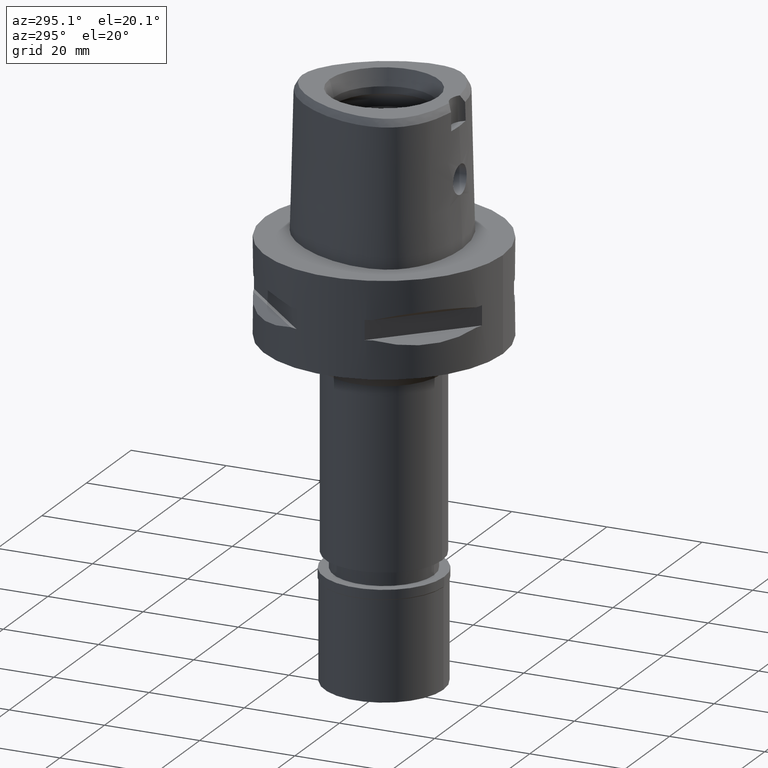
[diagram: clean part render]
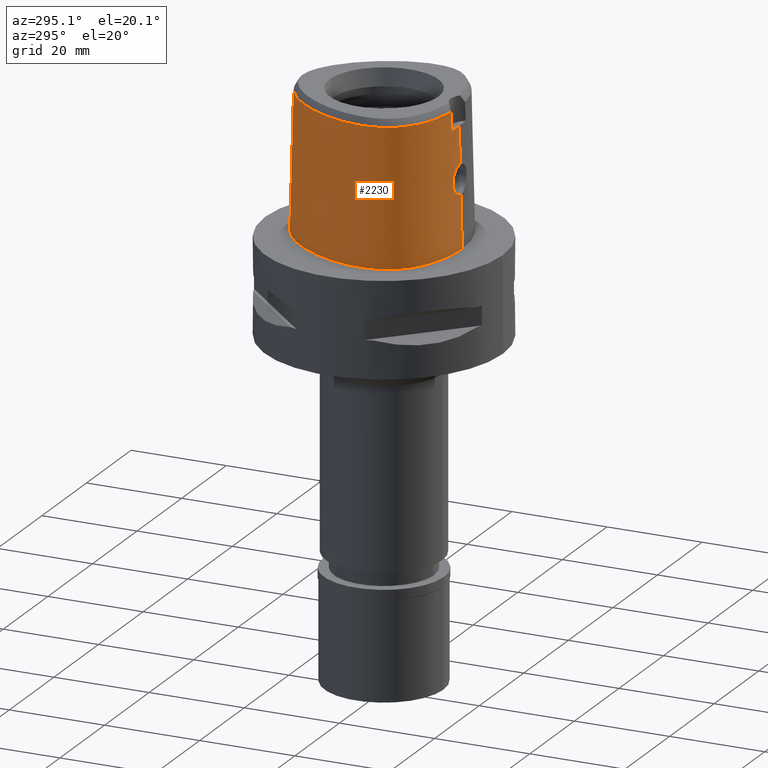
[diagram: same view with one face highlighted and labeled with its STEP entity id]
A machine part, auxiliary view. The second image highlights one B-rep face of the part: STEP entity #2230.
In plain terms, the highlighted face is a freeform B-spline surface patch.
Its self-contained STEP definition (entity closure, byte-faithful):
#16 = CARTESIAN_POINT ( 'NONE',  ( -2.147290074988021047, -15.96826519308855019, 16.16606823402931781 ) ) ;
#33 = CARTESIAN_POINT ( 'NONE',  ( -17.16495052104277974, -7.165908204084947997, -1.345441136431889395E-07 ) ) ;
#89 = CARTESIAN_POINT ( 'NONE',  ( 0.5756361495652000393, 18.69183960688999946, -0.5704149693897000439 ) ) ;
#103 = CARTESIAN_POINT ( 'NONE',  ( -2.839941135502000124E-12, -16.18126839358999902, 10.94999999999999929 ) ) ;
#110 = CARTESIAN_POINT ( 'NONE',  ( -4.735056267558000798, 17.74784408553999882, -0.5704149693897000439 ) ) ;
#133 = CARTESIAN_POINT ( 'NONE',  ( -11.44887800681000023, -13.28533830653000081, 19.20397063612000110 ) ) ;
#158 = CARTESIAN_POINT ( 'NONE',  ( -16.46533669864999894, -6.958244188577999978, 29.09116343887000156 ) ) ;
#163 = CARTESIAN_POINT ( 'NONE',  ( -2.030787586190755611, -15.97439197203214611, 16.27657083949467776 ) ) ;
#177 = CARTESIAN_POINT ( 'NONE',  ( -14.61870759508999917, -11.12154142011999980, 9.316777833364998429 ) ) ;
#181 = CARTESIAN_POINT ( 'NONE',  ( 6.782210745013088522E-08, -15.90128720080580216, 22.15000025258986582 ) ) ;
#198 = CARTESIAN_POINT ( 'NONE',  ( -10.90668476811999987, 11.98047050197999930, 29.09116343887000156 ) ) ;
#207 = CARTESIAN_POINT ( 'NONE',  ( -2.953287761239811182, -15.96791042230702473, 13.23104891048737386 ) ) ;
#208 = CARTESIAN_POINT ( 'NONE',  ( -1.154649350552922948, -16.01059875151096534, 16.82300001247303101 ) ) ;
#216 = CARTESIAN_POINT ( 'NONE',  ( -1.365876440252464796, -16.14000093520535017, 11.27254294479018881 ) ) ;
#227 = CARTESIAN_POINT ( 'NONE',  ( -16.45596362256999967, -8.350972089984999513, 9.316777833364998429 ) ) ;
#236 = CARTESIAN_POINT ( 'NONE',  ( -2.167461438340692936, -16.07478142648848873, 11.85411610869223153 ) ) ;
#253 = CARTESIAN_POINT ( 'NONE',  ( 1.060560745542000083, -15.70738053694999792, 29.09116343887000156 ) ) ;
#259 = CARTESIAN_POINT ( 'NONE',  ( -1.777739861705566415, -15.98655714082981483, 16.48034954023966492 ) ) ;
#309 = CARTESIAN_POINT ( 'NONE',  ( -15.84228689412705471, 3.460033471611907441, 28.52071192347010609 ) ) ;
#333 = CARTESIAN_POINT ( 'NONE',  ( -1.304824586065597591, -16.14367980511035938, 11.24258093298019290 ) ) ;
#342 = CARTESIAN_POINT ( 'NONE',  ( -2.804416461968546770, -15.93383585885220199, 15.19914549896493838 ) ) ;
#395 = CARTESIAN_POINT ( 'NONE',  ( -3.235121119988999983, -15.64755630481999837, 24.69999999999999929 ) ) ;
#413 = CARTESIAN_POINT ( 'NONE',  ( 0.3539521637489999595, 17.96246268766000043, 29.09116343887000156 ) ) ;
#422 = B_SPLINE_CURVE_WITH_KNOTS ( 'NONE', 3,
 ( #3407, #2302, #874, #3831, #4608, #3855, #4548, #1165, #4290, #4655, #1222, #33, #489, #1195, #2709, #2656, #2021, #3807, #464, #4182, #4208, #435 ),
 .UNSPECIFIED., .F., .F.,
 ( 4, 1, 1, 1, 1, 1, 1, 1, 1, 1, 1, 1, 1, 1, 1, 1, 1, 1, 1, 4 ),
 ( 0.0000000000000000000, 0.04166666666833999944, 0.08333333333493000983, 0.1666666666682000142, 0.2500000000013000157, 0.3333333333344999927, 0.4166666666677000253, 0.5000000000008999468, 0.5416666666675000741, 0.5833333333340999793, 0.6250000000006999956, 0.6458333333340000593, 0.6666666666673000119, 0.6875000000005999645, 0.7083333333339000282, 0.7500000000005000445, 0.7916666666671000607, 0.8333333333336999660, 0.9166666666668999985, 1.000000000000000000 ),
 .UNSPECIFIED. ) ;
#425 = DIRECTION ( 'NONE',  ( -1.823516099657955626E-12, -0.02499051295371941192, -0.9996876883618752707 ) ) ;
#435 = CARTESIAN_POINT ( 'NONE',  ( -2.281368045801000027E-11, -16.45500000000000185, 1.855922822831999799E-13 ) ) ;
#436 = ORIENTED_EDGE ( 'NONE', *, *, #506, .T. ) ;
#451 = VERTEX_POINT ( 'NONE', #1111 ) ;
#464 = CARTESIAN_POINT ( 'NONE',  ( -8.946741557338842910, -15.03902344067969921, -1.345441136431889395E-07 ) ) ;
#489 = CARTESIAN_POINT ( 'NONE',  ( -16.66912842446813769, -8.445800782619697245, -1.345441136431889395E-07 ) ) ;
#506 = EDGE_CURVE ( 'NONE', #3786, #1554, #680, .T. ) ;
#511 = CARTESIAN_POINT ( 'NONE',  ( -0.7803301224157143112, -16.17127761896326987, 11.02218832487876021 ) ) ;
#515 = CARTESIAN_POINT ( 'NONE',  ( -8.951632343266000547, -15.05250172412999987, -0.5704149693897000439 ) ) ;
#537 = CARTESIAN_POINT ( 'NONE',  ( -16.98194807787999849, -3.273961227261000140, 29.09116343887000156 ) ) ;
#543 = B_SPLINE_CURVE_WITH_KNOTS ( 'NONE', 3,
 ( #3535, #181, #1320, #3954 ),
 .UNSPECIFIED., .F., .F.,
 ( 4, 4 ),
 ( 0.0000000000000000000, 1.000000000000000000 ),
 .UNSPECIFIED. ) ;
#547 = CARTESIAN_POINT ( 'NONE',  ( -1.974011923641828758, -15.97722169910675127, 16.32556985268866967 ) ) ;
#564 = CARTESIAN_POINT ( 'NONE',  ( -17.26695526121000057, -0.2694874892783000186, 9.316777833364998429 ) ) ;
#572 = CARTESIAN_POINT ( 'NONE',  ( -1.824495776585176587, -16.10763072133382323, 11.54770719424314507 ) ) ;
#587 = CARTESIAN_POINT ( 'NONE',  ( -13.51574691691999774, -12.49390941817999945, -0.5704149693897000439 ) ) ;
#593 = CARTESIAN_POINT ( 'NONE',  ( -0.9200171648280663916, -16.01717542030822017, 16.90838961258443973 ) ) ;
#608 = CARTESIAN_POINT ( 'NONE',  ( -8.782085057800998129, -14.58525445429999934, 19.20397063612000110 ) ) ;
#611 = VECTOR ( 'NONE', #425, 1000.000000000000114 ) ;
#614 = LINE ( 'NONE', #1726, #3405 ) ;
#618 = CARTESIAN_POINT ( 'NONE',  ( -1.246904710687278595, -16.00770134240468678, 16.78481881917275587 ) ) ;
#624 = CARTESIAN_POINT ( 'NONE',  ( -1.185240961617836764, -16.15026635704342084, 11.18970954939988438 ) ) ;
#632 = CARTESIAN_POINT ( 'NONE',  ( -2.218346767529179697, -16.06939536445589312, 11.90655067609835704 ) ) ;
#638 = CARTESIAN_POINT ( 'NONE',  ( 0.7201291677544999770, -16.21519136713000009, 9.316777833364998429 ) ) ;
#647 = CARTESIAN_POINT ( 'NONE',  ( -1.142332392165549493, -16.01097948216497713, 16.82800652385463280 ) ) ;
#659 = CARTESIAN_POINT ( 'NONE',  ( -2.611019405680786942, -16.02245593392139966, 12.42336243517981131 ) ) ;
#666 = CARTESIAN_POINT ( 'NONE',  ( -7.523733151595394020, 15.26501052509573242, 28.52071192347010609 ) ) ;
#680 = B_SPLINE_CURVE_WITH_KNOTS ( 'NONE', 3,
 ( #2186, #1053, #3214, #2541 ),
 .UNSPECIFIED., .F., .F.,
 ( 4, 4 ),
 ( 0.0000000000000000000, 1.000000000000000000 ),
 .UNSPECIFIED. ) ;
#717 = CARTESIAN_POINT ( 'NONE',  ( 1.070056051206000003, -15.95437343328999802, 19.20397063612000110 ) ) ;
#720 = CARTESIAN_POINT ( 'NONE',  ( -2.823487070365362506, -15.99101270351569681, 12.84654193248368692 ) ) ;
#738 = CARTESIAN_POINT ( 'NONE',  ( 1.089046662534999932, -16.44835922595000000, -0.5704149693897000439 ) ) ;
#771 = CARTESIAN_POINT ( 'NONE',  ( -3.050024389103567213, -15.93682728871436893, 14.04426652284395693 ) ) ;
#792 = CARTESIAN_POINT ( 'NONE',  ( 0.3838142949113000357, 18.70350313193999980, -0.5704149693897000439 ) ) ;
#818 = CARTESIAN_POINT ( 'NONE',  ( 0.3738602511904999814, 18.45648965052000179, 9.316777833364998429 ) ) ;
#874 = CARTESIAN_POINT ( 'NONE',  ( -2.040572358359288518, 18.55015625331030193, -1.345441136431889395E-07 ) ) ;
#896 = ORIENTED_EDGE ( 'NONE', *, *, #2390, .T. ) ;
#901 = CARTESIAN_POINT ( 'NONE',  ( -4.922186715368000343, -15.43572473049999871, 29.09116343887000156 ) ) ;
#917 = EDGE_CURVE ( 'NONE', #451, #2364, #614, .T. ) ;
#921 = CARTESIAN_POINT ( 'NONE',  ( -16.06260382109000062, 3.539545244210000163, 19.20397063612000110 ) ) ;
#942 = CARTESIAN_POINT ( 'NONE',  ( -17.51166499216999739, -0.2260900516768000190, -0.5704149693897000439 ) ) ;
#965 = CARTESIAN_POINT ( 'NONE',  ( -15.57503057667000057, -8.992248095013000153, 29.09116343887000156 ) ) ;
#988 = CARTESIAN_POINT ( 'NONE',  ( -11.32630877641999945, -13.06981786779999943, 29.09116343887000156 ) ) ;
#994 = CARTESIAN_POINT ( 'NONE',  ( -1.612726137497974666, -15.99376531707286375, 16.58900383221054042 ) ) ;
#1011 = CARTESIAN_POINT ( 'NONE',  ( -1.893775706185675922, 17.84807082153568203, 28.52071192347010253 ) ) ;
#1034 = CARTESIAN_POINT ( 'NONE',  ( -2.651693848328785741, -16.01689519106129111, 12.49206992028461194 ) ) ;
#1051 = CARTESIAN_POINT ( 'NONE',  ( -1.080687980687604188, -16.01283629952124699, 16.85233897233315048 ) ) ;
#1053 = CARTESIAN_POINT ( 'NONE',  ( -1.084489118009109188, -15.83754148632461956, 24.70000016923100361 ) ) ;
#1057 = CARTESIAN_POINT ( 'NONE',  ( -1.175386497639693939, -16.15078445366180304, 11.18557374674743521 ) ) ;
#1071 = CARTESIAN_POINT ( 'NONE',  ( 1.079551356871000234, -16.20136632962000078, 9.316777833364998429 ) ) ;
#1083 = CARTESIAN_POINT ( 'NONE',  ( -2.816407481551031378, -15.93333177460182881, 15.17063687596105126 ) ) ;
#1111 = CARTESIAN_POINT ( 'NONE',  ( -2.940965197940999906E-11, 17.98202997909999823, 28.52071728569000086 ) ) ;
#1121 = CARTESIAN_POINT ( 'NONE',  ( -14.26907056455281086, -10.79012254419703964, 28.52071192347010609 ) ) ;
#1124 = CARTESIAN_POINT ( 'NONE',  ( -1.200046882047291152, -16.14948273154544722, 11.19596910874570383 ) ) ;
#1165 = CARTESIAN_POINT ( 'NONE',  ( -16.51672825098355801, 3.703437501148585387, -1.345441136431889395E-07 ) ) ;
#1173 = CARTESIAN_POINT ( 'NONE',  ( -2.789432624428045404, -15.93448362604005553, 15.23385107220370394 ) ) ;
#1195 = CARTESIAN_POINT ( 'NONE',  ( -16.20602472255270854, -9.356552736059130737, -1.345441136431889395E-07 ) ) ;
#1222 = CARTESIAN_POINT ( 'NONE',  ( -17.56373943267335491, -5.455996094228553694, -1.345441136431889395E-07 ) ) ;
#1244 = CARTESIAN_POINT ( 'NONE',  ( -0.4636176334529999998, 18.23430299984999792, 19.20397063612000110 ) ) ;
#1253 = CARTESIAN_POINT ( 'NONE',  ( -3.168920966622999824, -15.55911077538999976, 28.52071192346999950 ) ) ;
#1273 = CARTESIAN_POINT ( 'NONE',  ( -4.628819214691000106, 17.52182785284000133, 9.316777833364998429 ) ) ;
#1277 = B_SPLINE_CURVE_WITH_KNOTS ( 'NONE', 3,
 ( #4874, #1495, #2984, #2205, #4497, #3704, #1121, #4855, #4426, #2607, #1521, #4028, #4060, #4131, #309, #3752, #1445, #666, #4405, #1011, #2505, #1838 ),
 .UNSPECIFIED., .F., .F.,
 ( 4, 1, 1, 1, 1, 1, 1, 1, 1, 1, 1, 1, 1, 1, 1, 1, 1, 1, 1, 4 ),
 ( 0.0000000000000000000, 0.03108635432773906859, 0.1191694130250540162, 0.1632109423737113651, 0.2072524717223688528, 0.2512940010710263405, 0.2733147657453551260, 0.2953355304196838005, 0.3173562950940124749, 0.3393770597683412604, 0.3834185891169987204, 0.4274601184656560693, 0.4715016478143136958, 0.5595847065116285046, 0.6476677652089434245, 0.7357508239062583444, 0.8238338826034675710, 0.9119169413008565428, 0.9559584706495034556, 1.000000000000000000 ),
 .UNSPECIFIED. ) ;
#1299 = CARTESIAN_POINT ( 'NONE',  ( -17.02224553026000109, -0.3128849268798000183, 19.20397063612000110 ) ) ;
#1318 = CARTESIAN_POINT ( 'NONE',  ( -17.17866843582999792, -7.169980046546999830, -0.5704149693897000439 ) ) ;
#1320 = CARTESIAN_POINT ( 'NONE',  ( 6.797732430453555336E-08, -15.96503292052497969, 19.60000012629500077 ) ) ;
#1339 = CARTESIAN_POINT ( 'NONE',  ( -16.94089119010000033, -7.099401427224000471, 9.316777833364998429 ) ) ;
#1361 = CARTESIAN_POINT ( 'NONE',  ( -13.05575584666000211, -11.90823686029999884, 29.09116343887000156 ) ) ;
#1371 = CARTESIAN_POINT ( 'NONE',  ( -2.192347023517017934, -16.07215629485219921, 11.87955887064578242 ) ) ;
#1387 = CARTESIAN_POINT ( 'NONE',  ( -7.822764684203001195, 15.64590997224000013, 9.316777833364998429 ) ) ;
#1396 = CARTESIAN_POINT ( 'NONE',  ( -1.161963448143040978, -16.01037049747069929, 16.81999471490744469 ) ) ;
#1410 = CARTESIAN_POINT ( 'NONE',  ( -2.589913444526260378, -16.02530027108240418, 12.38873572170439097 ) ) ;
#1415 = ORIENTED_EDGE ( 'NONE', *, *, #3423, .F. ) ;
#1426 = EDGE_CURVE ( 'NONE', #1676, #2899, #3789, .T. ) ;
#1439 = CARTESIAN_POINT ( 'NONE',  ( -2.326795673539355125, -16.05749942887523218, 12.02743345691540000 ) ) ;
#1445 = CARTESIAN_POINT ( 'NONE',  ( -10.91764528034740778, 11.98972044748099464, 28.52071192347010609 ) ) ;
#1453 = CARTESIAN_POINT ( 'NONE',  ( -2.909137552899626389, -15.97627371699405074, 13.08234413149751241 ) ) ;
#1471 = CARTESIAN_POINT ( 'NONE',  ( -1.298308546164000044, -16.00668726618000193, 19.20397063612000110 ) ) ;
#1478 = CARTESIAN_POINT ( 'NONE',  ( -2.828519626698094314, -15.99018834924777188, 12.85893844538408004 ) ) ;
#1495 = CARTESIAN_POINT ( 'NONE',  ( -3.738627773282984013, -15.49270868800090817, 28.52071192347010253 ) ) ;
#1521 = CARTESIAN_POINT ( 'NONE',  ( -16.47905549556842075, -6.962316292880086799, 28.52071192347010609 ) ) ;
#1534 = CARTESIAN_POINT ( 'NONE',  ( -2.897875851387719415, -15.92997726602835051, 14.97345579578013997 ) ) ;
#1554 = VERTEX_POINT ( 'NONE', #2074 ) ;
#1557 = CARTESIAN_POINT ( 'NONE',  ( -3.049900212868041471, -15.94261167837582960, 13.81468546120752627 ) ) ;
#1581 = CARTESIAN_POINT ( 'NONE',  ( -0.4507704718237000030, 17.98660829246000148, 29.09116343887000156 ) ) ;
#1617 = LINE ( 'NONE', #4513, #611 ) ;
#1629 = CARTESIAN_POINT ( 'NONE',  ( 0.5455909865319999996, 18.19844099959999895, 19.20397063612000110 ) ) ;
#1653 = CARTESIAN_POINT ( 'NONE',  ( -4.522582161823000213, 17.29581162014000029, 19.20397063612000110 ) ) ;
#1676 = VERTEX_POINT ( 'NONE', #3844 ) ;
#1679 = CARTESIAN_POINT ( 'NONE',  ( -4.965998058601000409, -15.68039671751999720, 19.20397063612000110 ) ) ;
#1700 = CARTESIAN_POINT ( 'NONE',  ( -16.22974791770000280, -8.250337560479998444, 19.20397063612000110 ) ) ;
#1719 = CARTESIAN_POINT ( 'NONE',  ( -16.00394162810000154, -9.239880006736001405, 9.316777833364998429 ) ) ;
#1726 = CARTESIAN_POINT ( 'NONE',  ( -2.940965197940999906E-11, 17.98202997909999823, 28.52071728569000086 ) ) ;
#1728 = CARTESIAN_POINT ( 'NONE',  ( -0.9942354941246660527, -16.01528989706931583, 16.88423654522987860 ) ) ;
#1744 = CARTESIAN_POINT ( 'NONE',  ( -16.21839715381000246, -9.363695962597001099, -0.5704149693897000439 ) ) ;
#1752 = CARTESIAN_POINT ( 'NONE',  ( -1.509334869930127665, -15.99801316580342814, 16.65089544972779478 ) ) ;
#1767 = CARTESIAN_POINT ( 'NONE',  ( -11.09665480883999855, 12.14079261895999906, 19.20397063612000110 ) ) ;
#1787 = CARTESIAN_POINT ( 'NONE',  ( -2.746377481657158892, -16.00326057041207761, 12.66963668950923250 ) ) ;
#1799 = CARTESIAN_POINT ( 'NONE',  ( -1.858121229638786343, -15.98284882596963996, 16.42071856142419861 ) ) ;
#1810 = CARTESIAN_POINT ( 'NONE',  ( -2.676760126935361583, -16.01335860443708015, 12.53714519679417272 ) ) ;
#1827 = CARTESIAN_POINT ( 'NONE',  ( -2.094858927816013239, -15.97106233740291259, 16.21701581232884237 ) ) ;
#1838 = CARTESIAN_POINT ( 'NONE',  ( -2.940965197940999906E-11, 17.98202997909999823, 28.52071728569000086 ) ) ;
#1864 = CARTESIAN_POINT ( 'NONE',  ( -1.234760267101486120, -16.14760890805744253, 11.21096960602424097 ) ) ;
#1874 = VERTEX_POINT ( 'NONE', #3865 ) ;
#1989 = VERTEX_POINT ( 'NONE', #3910 ) ;
#1996 = FACE_OUTER_BOUND ( 'NONE', #4256, .T. ) ;
#2021 = CARTESIAN_POINT ( 'NONE',  ( -13.50690093688630355, -12.48264648703121260, -1.345441136431889395E-07 ) ) ;
#2039 = CARTESIAN_POINT ( 'NONE',  ( -5.009809401833999587, -15.92506870453999923, 9.316777833364998429 ) ) ;
#2060 = CARTESIAN_POINT ( 'NONE',  ( -17.33218217752000001, -5.422849666056000828, 9.316777833364998429 ) ) ;
#2074 = CARTESIAN_POINT ( 'NONE',  ( -3.235121119988999983, -15.64755630481999837, 24.69999999999999929 ) ) ;
#2081 = CARTESIAN_POINT ( 'NONE',  ( -17.22987907422999854, -3.272349404924000282, 19.20397063612000110 ) ) ;
#2086 = CARTESIAN_POINT ( 'NONE',  ( -1.572520811367034366, -16.12649376600628059, 11.38472095010808793 ) ) ;
#2087 = CARTESIAN_POINT ( 'NONE',  ( -0.6729281202612350521, -16.02259025627638778, 16.97651237904580057 ) ) ;
#2101 = CARTESIAN_POINT ( 'NONE',  ( -7.514850440890000094, 15.25369593373000043, 29.09116343887000156 ) ) ;
#2109 = CARTESIAN_POINT ( 'NONE',  ( 0.0000000000000000000, -16.02877864023999877, 17.05000000000000071 ) ) ;
#2124 = CARTESIAN_POINT ( 'NONE',  ( -8.697311415068000429, -14.35163081938999952, 29.09116343887000156 ) ) ;
#2144 = CARTESIAN_POINT ( 'NONE',  ( -2.543826128444886869, -16.03134158490992434, 12.31726274100129892 ) ) ;
#2186 = CARTESIAN_POINT ( 'NONE',  ( 2.030224829794000080E-07, -15.83752876601000281, 24.70000006102999990 ) ) ;
#2205 = CARTESIAN_POINT ( 'NONE',  ( -8.702202515497392099, -14.36510996956199548, 28.52071192347010609 ) ) ;
#2208 = EDGE_CURVE ( 'NONE', #2364, #1874, #422, .T. ) ;
#2211 = CARTESIAN_POINT ( 'NONE',  ( -2.852964108057064685, -15.98613240798083623, 12.92095709857099983 ) ) ;
#2229 = CARTESIAN_POINT ( 'NONE',  ( 8.526067355987000396E-11, 18.69499999997999851, 1.843710369560999637E-13 ) ) ;
#2230 = ADVANCED_FACE ( 'NONE', ( #1996 ), #4785, .T. ) ;
#2261 = CARTESIAN_POINT ( 'NONE',  ( -2.810669180506640608, -15.93357175435965090, 15.18434255725068560 ) ) ;
#2277 = CARTESIAN_POINT ( 'NONE',  ( 2.030224829794000080E-07, -15.83752876601000281, 24.70000006102999990 ) ) ;
#2278 = CARTESIAN_POINT ( 'NONE',  ( -4.416345108954999432, 17.06979538743999925, 29.09116343887000156 ) ) ;
#2285 = CARTESIAN_POINT ( 'NONE',  ( -2.319868985695882735, -15.95889227881325567, 15.99336665119922785 ) ) ;
#2302 = CARTESIAN_POINT ( 'NONE',  ( -0.6801907860994104160, 18.69500000336812207, -1.345441136431889395E-07 ) ) ;
#2323 = CARTESIAN_POINT ( 'NONE',  ( 0.3639062074696999827, 18.20947616909000288, 19.20397063612000110 ) ) ;
#2364 = VERTEX_POINT ( 'NONE', #2229 ) ;
#2373 = CARTESIAN_POINT ( 'NONE',  ( -1.941729152328000030, 18.07741812242000279, 19.20397063612000110 ) ) ;
#2390 = EDGE_CURVE ( 'NONE', #1989, #451, #1277, .T. ) ;
#2393 = CARTESIAN_POINT ( 'NONE',  ( -7.976721805859000369, 15.84201699148999865, -0.5704149693897000439 ) ) ;
#2414 = CARTESIAN_POINT ( 'NONE',  ( -17.08644795110999937, -5.387673865237999848, 19.20397063612000110 ) ) ;
#2438 = CARTESIAN_POINT ( 'NONE',  ( -15.66039569912999774, -10.22138777830999956, -0.5704149693897000439 ) ) ;
#2459 = CARTESIAN_POINT ( 'NONE',  ( -15.46013578524999943, -10.07579649596000060, 9.316777833364998429 ) ) ;
#2478 = CARTESIAN_POINT ( 'NONE',  ( -8.866858700533001070, -14.81887808922000005, 9.316777833364998429 ) ) ;
#2486 = CARTESIAN_POINT ( 'NONE',  ( -1.647720974870742427, -15.99226611569845247, 16.56665347346226369 ) ) ;
#2499 = CARTESIAN_POINT ( 'NONE',  ( -2.277845221344408699, -16.06297226044945958, 11.97064251377652866 ) ) ;
#2505 = CARTESIAN_POINT ( 'NONE',  ( -0.6295828121028675950, 17.98203011041537280, 28.52071192347010609 ) ) ;
#2540 = CARTESIAN_POINT ( 'NONE',  ( -2.785351805582555684, -15.99721084885888089, 12.75429401941662100 ) ) ;
#2541 = CARTESIAN_POINT ( 'NONE',  ( -3.235121119988999983, -15.64755630481999837, 24.69999999999999929 ) ) ;
#2557 = CARTESIAN_POINT ( 'NONE',  ( 0.7138086147879999510, -15.96808606751999982, 19.20397063612000110 ) ) ;
#2572 = ORIENTED_EDGE ( 'NONE', *, *, #3303, .F. ) ;
#2573 = CARTESIAN_POINT ( 'NONE',  ( -3.044373801969535442, -15.93377869067411723, 14.19140803545593776 ) ) ;
#2596 = CARTESIAN_POINT ( 'NONE',  ( -2.139722381399849827, -15.96867257770622572, 16.17353267031746711 ) ) ;
#2607 = CARTESIAN_POINT ( 'NONE',  ( -16.01658395504083643, -8.155509241189935921, 28.52071192347010609 ) ) ;
#2638 = CARTESIAN_POINT ( 'NONE',  ( -2.663989615078775408, -15.94049756288809938, 15.48802251322129919 ) ) ;
#2656 = CARTESIAN_POINT ( 'NONE',  ( -14.78833380645286510, -11.28232910388040722, -1.345441136431889395E-07 ) ) ;
#2709 = CARTESIAN_POINT ( 'NONE',  ( -15.64884224528512213, -10.21298828323255492, -1.345441136431889395E-07 ) ) ;
#2716 = CARTESIAN_POINT ( 'NONE',  ( -2.839941135502000124E-12, -16.18126839358999902, 10.94999999999999929 ) ) ;
#2731 = CARTESIAN_POINT ( 'NONE',  ( -2.043508294458999952, 18.56419797655999915, -0.5704149693897000439 ) ) ;
#2776 = EDGE_CURVE ( 'NONE', #2899, #1874, #1617, .T. ) ;
#2785 = CARTESIAN_POINT ( 'NONE',  ( -16.77753579929999717, -0.3562823644812999624, 29.09116343887000156 ) ) ;
#2803 = CARTESIAN_POINT ( 'NONE',  ( -15.78948610237999794, -9.116064050874999936, 19.20397063612000110 ) ) ;
#2823 = CARTESIAN_POINT ( 'NONE',  ( -13.20908620340999917, -12.10346104625999786, 19.20397063612000110 ) ) ;
#2831 = CARTESIAN_POINT ( 'NONE',  ( -1.489022098418614659, -16.13222843889009894, 11.33656707562905375 ) ) ;
#2850 = CARTESIAN_POINT ( 'NONE',  ( -16.84071372470000227, -5.352498064421000734, 29.09116343887000156 ) ) ;
#2874 = CARTESIAN_POINT ( 'NONE',  ( -11.28662484956000078, 12.30111473592999971, 9.316777833364998429 ) ) ;
#2884 = CARTESIAN_POINT ( 'NONE',  ( -1.464230115295341861, -15.99978155752991604, 16.67600899017843474 ) ) ;
#2899 = VERTEX_POINT ( 'NONE', #2716 ) ;
#2915 = CARTESIAN_POINT ( 'NONE',  ( -0.7716804096326577156, -16.02065638628776512, 16.95256773572744535 ) ) ;
#2935 = ORIENTED_EDGE ( 'NONE', *, *, #1426, .F. ) ;
#2945 = CARTESIAN_POINT ( 'NONE',  ( -2.884965141857559257, -15.98065922520799909, 13.00785839096715435 ) ) ;
#2953 = CARTESIAN_POINT ( 'NONE',  ( -3.040936525959272885, -15.93294854341571387, 14.23999838212788838 ) ) ;
#2964 = CARTESIAN_POINT ( 'NONE',  ( -1.309813746772999998, -16.25411905957000158, 9.316777833364998429 ) ) ;
#2984 = CARTESIAN_POINT ( 'NONE',  ( -5.902447850707896571, -15.16907854012099754, 28.52071192347010609 ) ) ;
#3023 = CARTESIAN_POINT ( 'NONE',  ( -3.027041479268463675, -15.93083733890005327, 14.38613028389028514 ) ) ;
#3043 = CARTESIAN_POINT ( 'NONE',  ( -3.033174470079177176, -15.94941370605617159, 13.62317640955338760 ) ) ;
#3063 = CARTESIAN_POINT ( 'NONE',  ( -1.992618723393999813, 18.32080804949000097, 9.316777833364998429 ) ) ;
#3089 = B_SPLINE_CURVE_WITH_KNOTS ( 'NONE', 3,
 ( #1253, #4268, #3722, #395 ),
 .UNSPECIFIED., .F., .F.,
 ( 4, 4 ),
 ( 0.0000000000000000000, 1.000000000000000000 ),
 .UNSPECIFIED. ) ;
#3161 = CARTESIAN_POINT ( 'NONE',  ( -15.82879718555000181, 3.455165072912000479, 29.09116343887000156 ) ) ;
#3166 = ORIENTED_EDGE ( 'NONE', *, *, #2208, .T. ) ;
#3181 = CARTESIAN_POINT ( 'NONE',  ( -11.47659489027000035, 12.46143685290000036, -0.5704149693897000439 ) ) ;
#3186 = CARTESIAN_POINT ( 'NONE',  ( -1.578081282703814647, -15.99520688258742851, 16.61014732801110938 ) ) ;
#3201 = CARTESIAN_POINT ( 'NONE',  ( -14.43869610808999937, -10.95090959492000060, 19.20397063612000110 ) ) ;
#3211 = CARTESIAN_POINT ( 'NONE',  ( -2.977125115133987698, -15.96287852150346609, 13.32982323607667929 ) ) ;
#3212 = CARTESIAN_POINT ( 'NONE',  ( -0.1860095695891538503, -16.02877864023999521, 17.05000000000000071 ) ) ;
#3214 = CARTESIAN_POINT ( 'NONE',  ( -2.169052023958359054, -15.77399788493572252, 24.70000016923100361 ) ) ;
#3228 = CARTESIAN_POINT ( 'NONE',  ( -7.668807562546000156, 15.44980295299000161, 19.20397063612000110 ) ) ;
#3253 = CARTESIAN_POINT ( 'NONE',  ( -14.25868462108000045, -10.78027776973000051, 29.09116343887000156 ) ) ;
#3268 = CARTESIAN_POINT ( 'NONE',  ( -2.552453281223320936, -16.03022206925511739, 12.33036638904224702 ) ) ;
#3303 = EDGE_CURVE ( 'NONE', #1989, #1554, #3089, .T. ) ;
#3316 = CARTESIAN_POINT ( 'NONE',  ( -2.453157249243884230, -15.95160785209461629, 15.82331514068931178 ) ) ;
#3335 = CARTESIAN_POINT ( 'NONE',  ( -2.835998777458668574, -15.98895818849806183, 12.87753709205216346 ) ) ;
#3341 = CARTESIAN_POINT ( 'NONE',  ( -2.727932080404930737, -15.93733995233629486, 15.36492654819695858 ) ) ;
#3378 = CARTESIAN_POINT ( 'NONE',  ( 0.7074880618215999561, -15.72098076789999865, 29.09116343887000156 ) ) ;
#3388 = CARTESIAN_POINT ( 'NONE',  ( -2.121841374835716110, -15.96962928976705953, 16.19099185722724954 ) ) ;
#3405 = VECTOR ( 'NONE', #4708, 1000.000000000000114 ) ;
#3407 = CARTESIAN_POINT ( 'NONE',  ( 8.526067355987000396E-11, 18.69499999997999851, 1.843710369560999637E-13 ) ) ;
#3423 = EDGE_CURVE ( 'NONE', #3786, #1676, #543, .T. ) ;
#3431 = CARTESIAN_POINT ( 'NONE',  ( -0.4893119567116999691, 18.72969241463999879, -0.5704149693897000439 ) ) ;
#3483 = CARTESIAN_POINT ( 'NONE',  ( 0.5606135680485999639, 18.44514030323999876, 9.316777833364998429 ) ) ;
#3484 = ORIENTED_EDGE ( 'NONE', *, *, #2776, .F. ) ;
#3531 = CARTESIAN_POINT ( 'NONE',  ( -14.79871908209999987, -11.29217324531999900, -0.5704149693897000439 ) ) ;
#3535 = CARTESIAN_POINT ( 'NONE',  ( 2.030224829794000080E-07, -15.83752876601000281, 24.70000006102999990 ) ) ;
#3552 = CARTESIAN_POINT ( 'NONE',  ( -16.00353221283000238, -8.149703030974000839, 29.09116343887000156 ) ) ;
#3560 = CARTESIAN_POINT ( 'NONE',  ( -1.671121799475668412, -15.99125384014665485, 16.55147925627117189 ) ) ;
#3578 = CARTESIAN_POINT ( 'NONE',  ( -16.70311394438000008, -7.028822807901000225, 19.20397063612000110 ) ) ;
#3598 = CARTESIAN_POINT ( 'NONE',  ( -17.47781007058999947, -3.270737582586999981, 9.316777833364998429 ) ) ;
#3622 = CARTESIAN_POINT ( 'NONE',  ( -15.25987587136999935, -9.930205213620999061, 19.20397063612000110 ) ) ;
#3632 = CARTESIAN_POINT ( 'NONE',  ( -2.174903967716026010, -16.07399873101336496, 11.86167149722171921 ) ) ;
#3669 = CARTESIAN_POINT ( 'NONE',  ( -2.567601606276564752, -16.02824055683983673, 12.35375696231888654 ) ) ;
#3687 = CARTESIAN_POINT ( 'NONE',  ( -1.171575576434904065, -16.15098385800271075, 11.18398276020157311 ) ) ;
#3704 = CARTESIAN_POINT ( 'NONE',  ( -13.06460239553488734, -11.91950051571214253, 28.52071192347010609 ) ) ;
#3722 = CARTESIAN_POINT ( 'NONE',  ( -3.213444811939455636, -15.61774738279276953, 25.97357064115666603 ) ) ;
#3736 = CARTESIAN_POINT ( 'NONE',  ( -2.820449305715940991, -15.99150796465939273, 12.83914045378499225 ) ) ;
#3741 = CARTESIAN_POINT ( 'NONE',  ( -2.615901618694457920, -15.94298692150383445, 15.57147967510174880 ) ) ;
#3752 = CARTESIAN_POINT ( 'NONE',  ( -13.75951393052669758, 7.944084103042049705, 28.52071192347010609 ) ) ;
#3786 = VERTEX_POINT ( 'NONE', #2277 ) ;
#3789 = B_SPLINE_CURVE_WITH_KNOTS ( 'NONE', 3,
 ( #2109, #3212, #3981, #2087, #2915, #593, #1728, #1051, #4780, #647, #208, #1396, #618, #4756, #2884, #1752, #3186, #994, #2486, #3560, #4007, #259, #1799, #547, #163, #1827, #3388, #2596, #16, #2285, #3316, #3741, #2638, #3341, #4888, #1173, #342, #2261, #4913, #1083, #1534, #4840, #4557, #3023, #2953, #2573, #4095, #771, #1557, #3043, #3211, #207, #1453, #2945, #2211, #3335, #1478, #720, #3736, #2540, #1787, #1810, #1034, #659, #1410, #3669, #3268, #2144, #4817, #4791, #1439, #2499, #632, #1371, #3632, #236, #4730, #572, #2086, #2831, #216, #333, #1864, #1124, #624, #1057, #3687, #511, #4359, #103 ),
 .UNSPECIFIED., .F., .F.,
 ( 4, 2, 2, 1, 1, 1, 2, 2, 2, 2, 1, 2, 2, 2, 1, 1, 2, 2, 2, 2, 1, 1, 1, 2, 2, 2, 2, 2, 2, 2, 2, 1, 1, 1, 2, 2, 2, 2, 1, 2, 2, 2, 1, 1, 2, 2, 2, 2, 1, 1, 1, 2, 2, 4 ),
 ( 0.0000000000000000000, 0.06250000000001144917, 0.09375000000001705580, 0.1093750000000198869, 0.1171875000000214828, 0.1210937500000224265, 0.1230468750000231204, 0.1250000000000238143, 0.1562500000000341116, 0.1718750000000389688, 0.1796875000000414113, 0.1835937500000426048, 0.1875000000000437983, 0.2187500000000493772, 0.2343750000000518197, 0.2421875000000534017, 0.2460937500000541789, 0.2500000000000549560, 0.3125000000000651146, 0.3437500000000702216, 0.3593750000000727751, 0.3671875000000737188, 0.3710937500000742184, 0.3730468750000741074, 0.3750000000000740519, 0.4375000000000678346, 0.4687500000000647260, 0.4843750000000631717, 0.5000000000000616174, 0.5625000000000554001, 0.5937500000000520695, 0.6093750000000502931, 0.6171875000000495159, 0.6210937500000488498, 0.6230468750000485167, 0.6250000000000481837, 0.6562500000000466294, 0.6718750000000456302, 0.6796875000000447420, 0.6835937500000442979, 0.6875000000000437428, 0.7187500000000394129, 0.7343750000000371925, 0.7421875000000358602, 0.7460937500000351941, 0.7500000000000345279, 0.8125000000000269784, 0.8437500000000232037, 0.8593750000000212053, 0.8671875000000203171, 0.8710937500000196509, 0.8730468750000194289, 0.8750000000000190958, 1.000000000000000000 ),
 .UNSPECIFIED. ) ;
#3807 = CARTESIAN_POINT ( 'NONE',  ( -11.68694516750464452, -13.70394531543816896, -1.345441136431889395E-07 ) ) ;
#3831 = CARTESIAN_POINT ( 'NONE',  ( -4.728927208261337611, 17.73480469057522768, -1.345441136431889395E-07 ) ) ;
#3844 = CARTESIAN_POINT ( 'NONE',  ( 0.0000000000000000000, -16.02877864023999877, 17.05000000000000071 ) ) ;
#3855 = CARTESIAN_POINT ( 'NONE',  ( -11.46563508281412425, 12.45218750217953563, -1.345441136431889395E-07 ) ) ;
#3865 = CARTESIAN_POINT ( 'NONE',  ( -2.281368045801000027E-11, -16.45500000000000185, 1.855922822831999799E-13 ) ) ;
#3881 = CARTESIAN_POINT ( 'NONE',  ( -1.890839581262999891, 17.83402819534000017, 29.09116343887000156 ) ) ;
#3900 = CARTESIAN_POINT ( 'NONE',  ( -11.57144723719999924, -13.50085874524999952, 9.316777833364998429 ) ) ;
#3910 = CARTESIAN_POINT ( 'NONE',  ( -3.168920966622999824, -15.55911077538999976, 28.52071192346999950 ) ) ;
#3921 = CARTESIAN_POINT ( 'NONE',  ( -16.68217932744000009, -8.451606619491000671, -0.5704149693897000439 ) ) ;
#3949 = CARTESIAN_POINT ( 'NONE',  ( -17.57791640393000066, -5.458025466873999143, -0.5704149693897000439 ) ) ;
#3954 = CARTESIAN_POINT ( 'NONE',  ( 0.0000000000000000000, -16.02877864023999877, 17.05000000000000071 ) ) ;
#3972 = CARTESIAN_POINT ( 'NONE',  ( -15.05961595749000104, -9.784613931278999033, 29.09116343887000156 ) ) ;
#3981 = CARTESIAN_POINT ( 'NONE',  ( -0.3789226270081168524, -16.02723154424910135, 17.03294418566286694 ) ) ;
#3998 = CARTESIAN_POINT ( 'NONE',  ( -14.17736229679000104, 8.185312115363998942, 9.316777833364998429 ) ) ;
#4007 = CARTESIAN_POINT ( 'NONE',  ( -1.684236301195920493, -15.99068050411803910, 16.54283389550613848 ) ) ;
#4028 = CARTESIAN_POINT ( 'NONE',  ( -16.85489160760749527, -5.354527567565299684, 28.52071192347010609 ) ) ;
#4060 = CARTESIAN_POINT ( 'NONE',  ( -16.99625270563472768, -3.273868231553012986, 28.52071192347010609 ) ) ;
#4082 = CARTESIAN_POINT ( 'NONE',  ( 0.7264497207209000829, -16.46229666674999947, -0.5704149693897000439 ) ) ;
#4095 = CARTESIAN_POINT ( 'NONE',  ( -3.048918288824036260, -15.93569181003061708, 14.09458409078623831 ) ) ;
#4131 = CARTESIAN_POINT ( 'NONE',  ( -16.79165457291390950, -0.3537785057482769613, 28.52071192347010609 ) ) ;
#4157 = ORIENTED_EDGE ( 'NONE', *, *, #917, .T. ) ;
#4182 = CARTESIAN_POINT ( 'NONE',  ( -5.051093168168969250, -16.15562500333063412, -1.345441136431889395E-07 ) ) ;
#4208 = CARTESIAN_POINT ( 'NONE',  ( -1.683697722727920620, -16.45500000336682334, -1.345441136431889395E-07 ) ) ;
#4256 = EDGE_LOOP ( 'NONE', ( #3484, #2935, #1415, #436, #2572, #896, #4157, #3166 ) ) ;
#4261 = CARTESIAN_POINT ( 'NONE',  ( -0.4764647950822999967, 18.48199770724999880, 9.316777833364998429 ) ) ;
#4268 = CARTESIAN_POINT ( 'NONE',  ( -3.191384176940533557, -15.58827403572775339, 27.24714128231333277 ) ) ;
#4290 = CARTESIAN_POINT ( 'NONE',  ( -17.49754712640615395, -0.2285937494094147648, -1.345441136431889395E-07 ) ) ;
#4312 = CARTESIAN_POINT ( 'NONE',  ( -17.72574106694000307, -3.269125760250000123, -0.5704149693897000439 ) ) ;
#4336 = CARTESIAN_POINT ( 'NONE',  ( -13.74710177411000167, 7.936918441852999884, 29.09116343887000156 ) ) ;
#4359 = CARTESIAN_POINT ( 'NONE',  ( -0.3804472261483759499, -16.18126839359000257, 10.95000000000000284 ) ) ;
#4363 = CARTESIAN_POINT ( 'NONE',  ( -16.53021709216000090, 3.708305586806000420, -0.5704149693897000439 ) ) ;
#4381 = CARTESIAN_POINT ( 'NONE',  ( -11.69401646759000002, -13.71637918397000000, -0.5704149693897000439 ) ) ;
#4405 = CARTESIAN_POINT ( 'NONE',  ( -4.422474562381185414, 17.08283562090372243, 28.52071192347010609 ) ) ;
#4426 = CARTESIAN_POINT ( 'NONE',  ( -15.58740380353710719, -8.999391780896468518, 28.52071192347010609 ) ) ;
#4471 = CARTESIAN_POINT ( 'NONE',  ( -1.286803345554999867, -15.75925547279000227, 29.09116343887000156 ) ) ;
#4497 = CARTESIAN_POINT ( 'NONE',  ( -11.33338053122566436, -13.08225253589293580, 28.52071192347010609 ) ) ;
#4513 = CARTESIAN_POINT ( 'NONE',  ( -2.839941135502000124E-12, -16.18126839358999902, 10.94999999999999929 ) ) ;
#4548 = CARTESIAN_POINT ( 'NONE',  ( -14.38008119982632316, 8.302343751689525320, -1.345441136431889395E-07 ) ) ;
#4557 = CARTESIAN_POINT ( 'NONE',  ( -3.012997481774252861, -15.92993551890234727, 14.48403558617127018 ) ) ;
#4608 = CARTESIAN_POINT ( 'NONE',  ( -7.967839666320034375, 15.83070312766341559, -1.345441136431889395E-07 ) ) ;
#4630 = CARTESIAN_POINT ( 'NONE',  ( 0.5305684050154000353, 17.95174169595999913, 29.09116343887000156 ) ) ;
#4655 = CARTESIAN_POINT ( 'NONE',  ( -17.71143735898593263, -3.269218749978278105, -1.345441136431889395E-07 ) ) ;
#4680 = CARTESIAN_POINT ( 'NONE',  ( -14.39249255812999984, 8.309508952120001624, -0.5704149693897000439 ) ) ;
#4703 = CARTESIAN_POINT ( 'NONE',  ( -16.29641045661999854, 3.623925415507999848, 9.316777833364998429 ) ) ;
#4708 = DIRECTION ( 'NONE',  ( 4.019341852943888114E-12, 0.02499051285785929000, -0.9996876883642715761 ) ) ;
#4723 = CARTESIAN_POINT ( 'NONE',  ( -13.36241656016999890, -12.29868523222000043, 9.316777833364998429 ) ) ;
#4730 = CARTESIAN_POINT ( 'NONE',  ( -1.994661405231425766, -16.09284332352423164, 11.68121651172248754 ) ) ;
#4748 = CARTESIAN_POINT ( 'NONE',  ( -13.96223203545000047, 8.061115278609001678, 19.20397063612000110 ) ) ;
#4756 = CARTESIAN_POINT ( 'NONE',  ( -1.331640452534565089, -16.00477934145681047, 16.74576209628363443 ) ) ;
#4773 = CARTESIAN_POINT ( 'NONE',  ( -5.053620745066999653, -16.16974069155999771, -0.5704149693897000439 ) ) ;
#4780 = CARTESIAN_POINT ( 'NONE',  ( -1.123850819245109545, -16.01154604563820882, 16.83544840130054610 ) ) ;
#4785 = B_SPLINE_SURFACE_WITH_KNOTS ( 'NONE', 3, 3, ( 
 ( #89, #3483, #1629, #4630 ),
 ( #792, #818, #2323, #413 ),
 ( #3431, #4261, #1244, #1581 ),
 ( #2731, #3063, #2373, #3881 ),
 ( #110, #1273, #1653, #2278 ),
 ( #2393, #1387, #3228, #2101 ),
 ( #3181, #2874, #1767, #198 ),
 ( #4680, #3998, #4748, #4336 ),
 ( #4363, #4703, #921, #3161 ),
 ( #942, #564, #1299, #2785 ),
 ( #4312, #3598, #2081, #537 ),
 ( #3949, #2060, #2414, #2850 ),
 ( #1318, #1339, #3578, #158 ),
 ( #3921, #227, #1700, #3552 ),
 ( #1744, #1719, #2803, #965 ),
 ( #2438, #2459, #3622, #3972 ),
 ( #3531, #177, #3201, #3253 ),
 ( #587, #4723, #2823, #1361 ),
 ( #4381, #3900, #133, #988 ),
 ( #515, #2478, #608, #2124 ),
 ( #4773, #2039, #1679, #901 ),
 ( #4796, #2964, #1471, #4471 ),
 ( #4082, #638, #2557, #3378 ),
 ( #738, #1071, #717, #253 ) ),
 .UNSPECIFIED., .F., .F., .F.,
 ( 4, 1, 1, 1, 1, 1, 1, 1, 1, 1, 1, 1, 1, 1, 1, 1, 1, 1, 1, 1, 1, 4 ),
 ( 4, 4 ),
 ( -0.01173812893906999930, 0.0000000000000000000, 0.04166666666833999944, 0.08333333333493000983, 0.1666666666682000142, 0.2500000000013000157, 0.3333333333344999927, 0.4166666666677000253, 0.5000000000008999468, 0.5416666666675000741, 0.5833333333340999793, 0.6250000000006999956, 0.6458333333340000593, 0.6666666666673000119, 0.6875000000005999645, 0.7083333333339000282, 0.7500000000005000445, 0.7916666666671000607, 0.8333333333336999660, 0.9166666666668999985, 1.000000000000000000, 1.017968513185000035 ),
 ( -7.638467115767000804E-09, 1.000000389561999992 ),
 .UNSPECIFIED. ) ;
#4791 = CARTESIAN_POINT ( 'NONE',  ( -2.421847348362510921, -16.04659734725419185, 12.14335169878023635 ) ) ;
#4796 = CARTESIAN_POINT ( 'NONE',  ( -1.321318947380999864, -16.50155085297000213, -0.5704149693897000439 ) ) ;
#4817 = CARTESIAN_POINT ( 'NONE',  ( -2.481413756882849597, -16.03938740154340437, 12.22374741087844363 ) ) ;
#4840 = CARTESIAN_POINT ( 'NONE',  ( -2.955918695227827797, -15.92874700794739695, 14.77770287554773709 ) ) ;
#4855 = CARTESIAN_POINT ( 'NONE',  ( -15.07117015428031159, -9.793013966485945687, 28.52071192347010609 ) ) ;
#4874 = CARTESIAN_POINT ( 'NONE',  ( -3.168920966622999824, -15.55911077538999976, 28.52071192346999950 ) ) ;
#4888 = CARTESIAN_POINT ( 'NONE',  ( -2.757857542921388738, -15.93590525390334633, 15.30389640928843065 ) ) ;
#4913 = CARTESIAN_POINT ( 'NONE',  ( -2.814800487489022895, -15.93339868692384265, 15.17448999603935178 ) ) ;